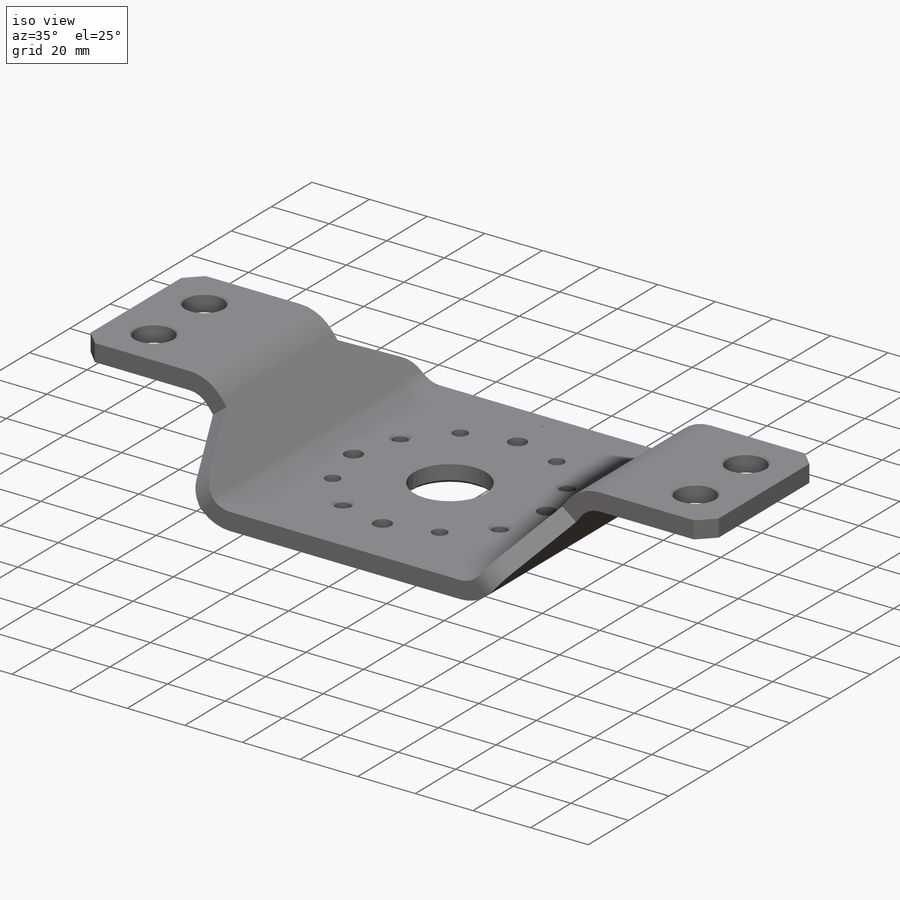
[diagram: iso view]
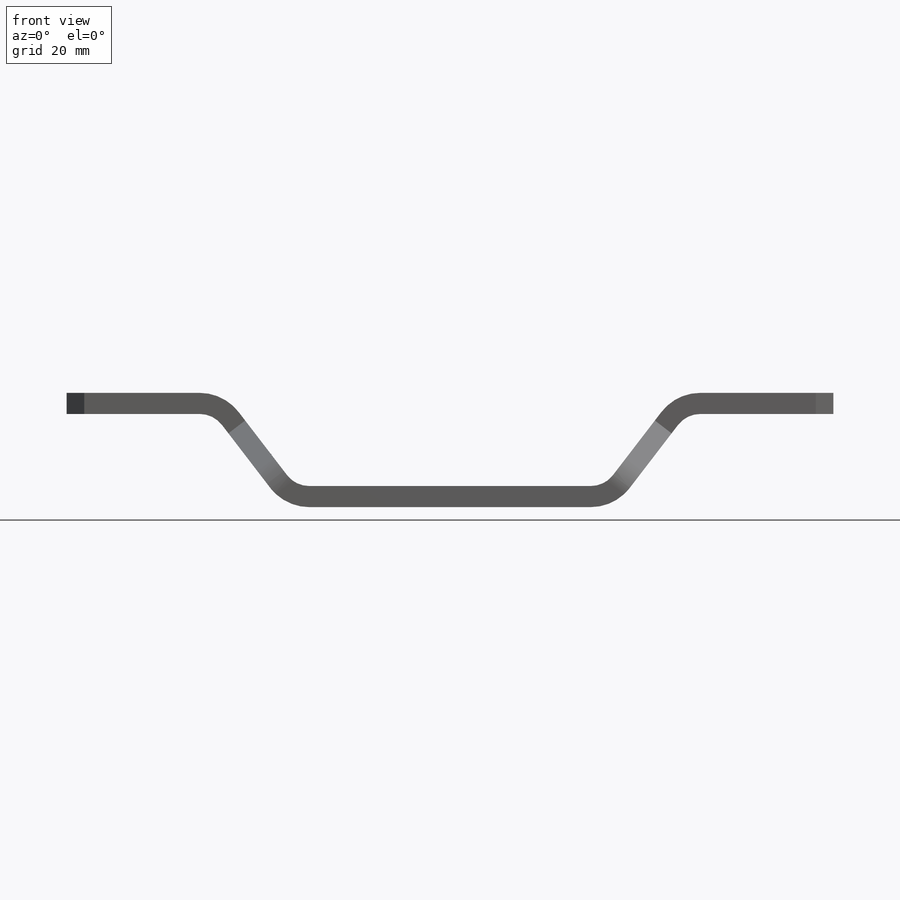
[diagram: front view]
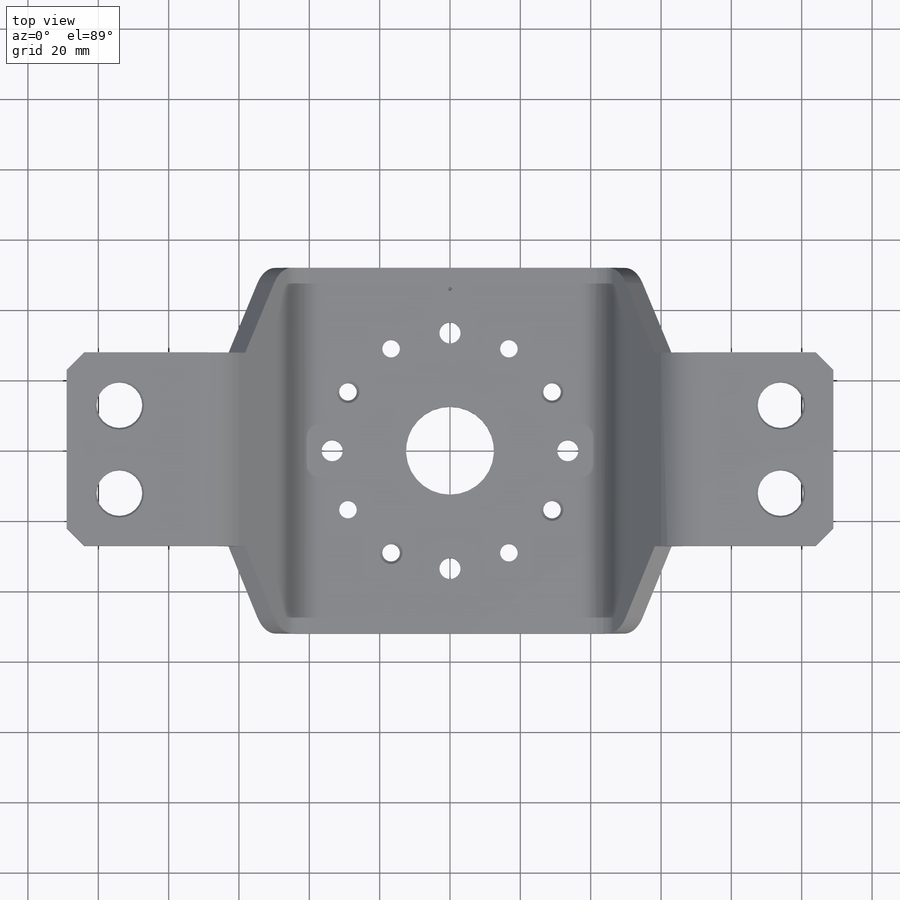
[diagram: top view]
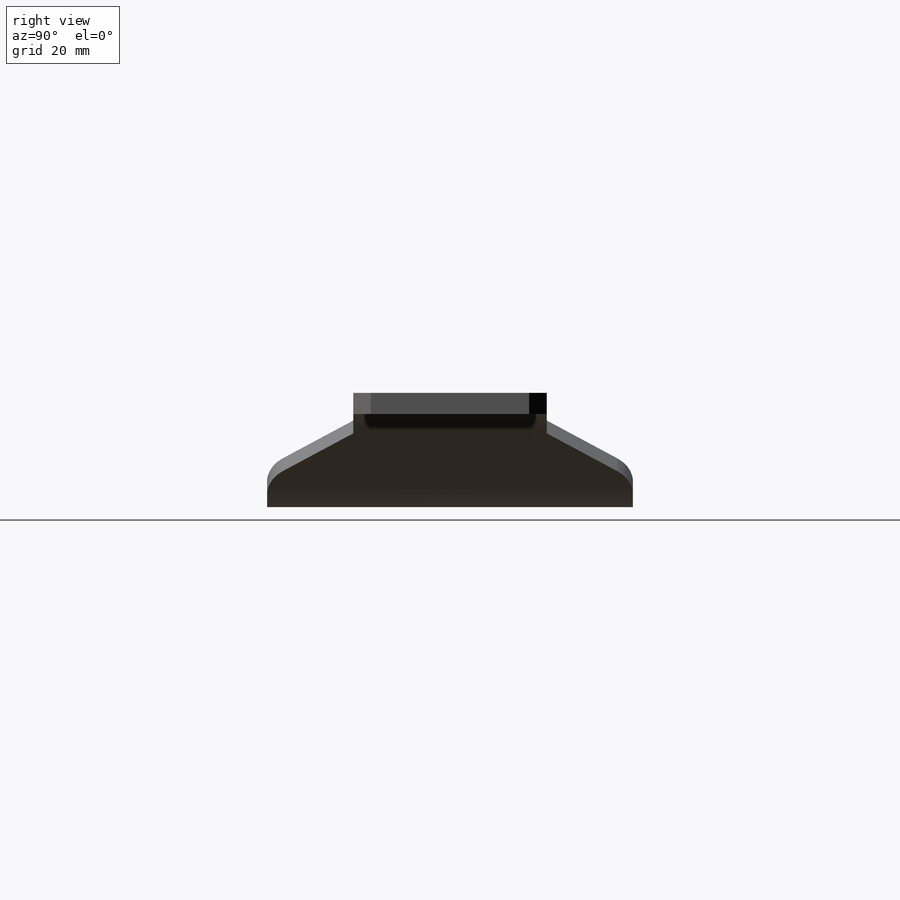
[diagram: right view]
SOLIDWORKS PART (.sldprt)
format: sldprt  version: not decoded by parser v0  size: 561,152 bytes
history: native  units: mm
features: sketch x14, thread x8, sheet_metal_op x5, material x4, cut_extrude x3, chamfer x3, hole x2, plane x1, fillet x1, mirror x1, cut_revolve x1 + 6 further entries (+11 scaffold rows collapsed)
feature tree (60):
  scaffold x11  (default folders/planes/origin — collapsed)
  material  " 09Г2С ГОСТ 4543-71"
  material  "PTricksFreeParameters"
  material  "PTricksEqu"
  material  "PTricksFreeParameters"
  plane  "Спереди"
  "Начало координат"
  sketch  "Эскиз1"  dims[c1.D1=76.4504mm c2.D1=218.0mm c2.D2=104.0mm]
  sheet_metal_op  "Листовой металл1"  Толщина=6mm
  sheet_metal_op  "Базовая кромка1"
  sketch  "Эскиз4"  dims[c1.D1=32.0mm c1.D2=104.0mm c2.D1=80.0mm c3.D1=8.0mm c3.D4=52.5deg c3.D5=1.0 c3.D8=3.0mm c3.D9=3.0mm]
  sheet_metal_op  "Изгиб3"
  sketch  "Эскиз5"  dims[c1.D1=3.0mm c1.D2=55.0mm c1.D3=~22.885751mm c2.D3=~55.955242deg]
  cut_extrude  "Вытянуть1"  [1 undecoded]
  sketch  "Эскиз6"  dims[D1=4.0mm D2=4.0mm]
  sketch  "Эскиз7"  dims[D1=5.0mm D2=15.0mm D3=2.0mm D4=32.0mm D5=32.0mm D6=1.0mm D7=~9.196695mm D8=~8.904036mm D9=~46.904036mm D10=~29.457356mm]
  sketch  "Эскиз8"  dims[c1.D3=~14.519178mm c1.D4=~14.523283mm c1.D5=13.0mm c1.D1=15.0mm c1.D2=15.0mm c2.D3=25.0mm c2.D4=15.0mm]
  cut_extrude  "Вытянуть2"  [1 undecoded]
  chamfer  "Фаска1"  Distance=0.5mm Angle=45deg
  chamfer  "Фаска2"  Distance=5mm Angle=45deg
  fillet  "Скругление1"  Radius=10mm
  mirror  "Зеркальное отражение1"
  sheet_metal_op  "Зеркальное отражение сгиба1"
  sheet_metal_op  "Зеркальное отражение сгиба2"
  sketch  "Эскиз9"  dims[c1.D1=80.0mm c1.D2=80.0mm c1.D3=~47.653114mm c1.D4=25.0mm c1.D5=6.0mm c2.D2=0.5mm c2.D3=6.0mm]
  hole  "Отверстие обработанное метчиком M6x1.01"  [1 undecoded]
  sketch  "Трехмерный эскиз1"
  thread  "Отверстие резьбы1"  Diameter=6mm  [1 undecoded]
  thread  "Отверстие резьбы2"  Diameter=6mm  [1 undecoded]
  thread  "Отверстие резьбы3"  Diameter=6mm  [1 undecoded]
  thread  "Отверстие резьбы4"  Diameter=6mm  [1 undecoded]
  sketch  "Эскиз10"  dims[hole-wizard template sketch: 55 standard entries collapsed; hole parameters kept: c17.Глубина проходного сверла=6.0mm c17.Диаметр передней зенковки=6.5mm c17.D4=~3.666174mm c17.Угол передней зенковки=90.0deg]
  hole  "Отверстие обработанное метчиком M6x1.02"  [1 undecoded]
  sketch  "Трехмерный эскиз2"
  sketch  "Эскиз11"  dims[hole-wizard template sketch: 55 standard entries collapsed; hole parameters kept: c17.Глубина проходного сверла=6.0mm c17.Диаметр задней зенковки=6.5mm c17.D4=~2.963249mm c17.Угол задней зенковки=90.0deg]
  thread  "Отверстие резьбы5"  Diameter=6mm  [1 undecoded]
  thread  "Отверстие резьбы6"  Diameter=6mm  [1 undecoded]
  thread  "Отверстие резьбы7"  Diameter=6mm  [1 undecoded]
  thread  "Отверстие резьбы8"  Diameter=6mm  [1 undecoded]
  cut_extrude  "Вытянуть3"  [1 undecoded]
  chamfer  "Фаска3"  Distance=1mm Angle=45deg
  sketch  "Эскиз12"  dims[D2=0.5mm D1=6.0mm]
  cut_revolve  "Вырез-Повернуть1"  Angle=360deg
  sketch  "Эскиз13"  dims[c1.D1=2.0mm c1.D2=~8.606451mm c1.D3=104.0mm c2.D3=52.5deg c2.D4=104.0mm c3.D4=52.5deg]
  "Развертка1"
  sketch  "Сгиб-Линии1"
  "Преобразование эскиза1"
  "Плоское состояние-<Изгиб3>1"
  "Плоское состояние-<Зеркальное отражение сгиба1>1"
  "Плоское состояние-<Зеркальное отражение сгиба2>1"
decode coverage: 25 of 38 modeling features carry decoded parameters; 6 rows unclassified (native names shown)
note: ~ marks probable driven/reference dimensions
note: 13 parameter values undecoded
summary: no parameter record found for 5 features
note: suppression state not decoded; provenance and decode notes live in map.json
